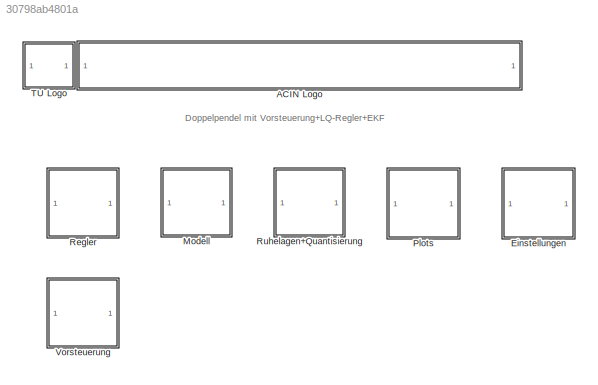
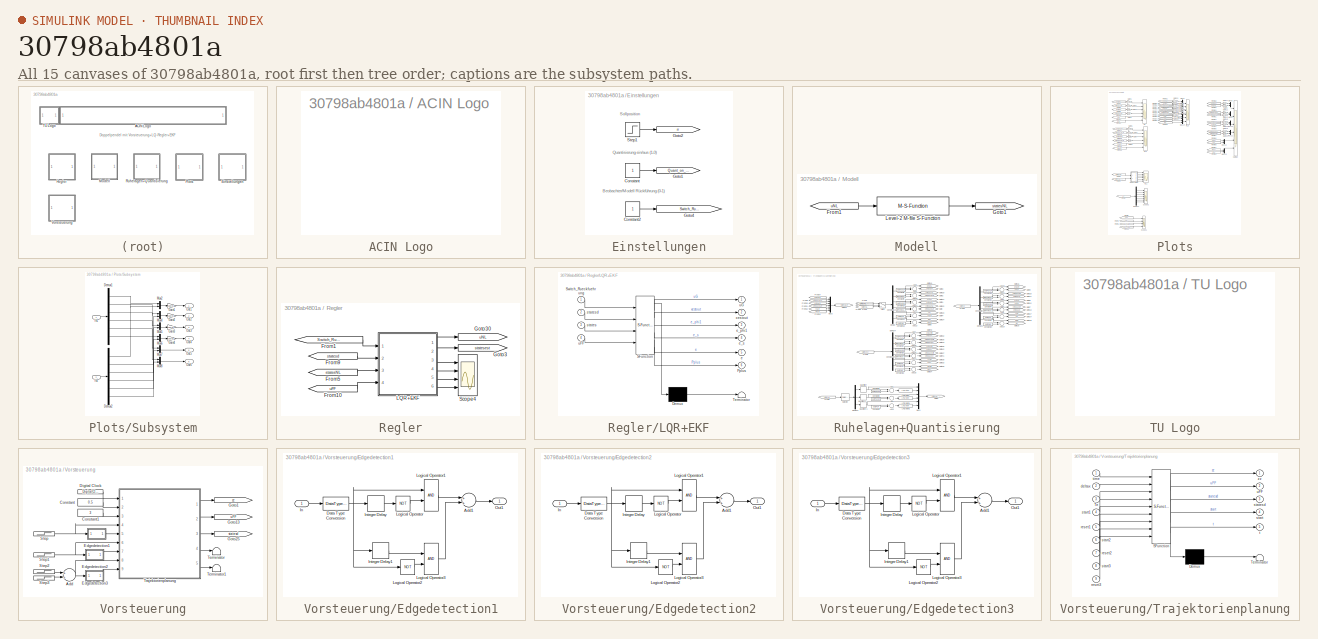
[diagram: thumbnail index - all 15 canvases of the model, root first then tree order]
MODEL slx_30798ab4801a
KIND model
CONFIG AbsTol = auto
CONFIG FixedStep = auto
CONFIG MaxStep = auto
CONFIG MinStep = auto
CONFIG RelTol = auto
CONFIG SampleTimeConstraint = Unconstrained
CONFIG Solver = ode45
CONFIG SolverMode = Auto
CONFIG SolverName = ode45
CONFIG StartTime = 0.0
CONFIG StopTime = 10
BLOCK [SubSystem] ACIN Logo
  Ports = []
  RequestExecContextInheritance = off
  UserDataPersistent = on
  Variant = off
BLOCK [SubSystem] Einstellungen
  Ports = []
  RequestExecContextInheritance = off
  Variant = off
BLOCK [Constant] Einstellungen/Constant
BLOCK [Constant] Einstellungen/Constant2
BLOCK [Goto] Einstellungen/Goto1
  GotoTag = Quant_on_off
  TagVisibility = global
BLOCK [Goto] Einstellungen/Goto2
  GotoTag = rr
  TagVisibility = global
BLOCK [Goto] Einstellungen/Goto4
  GotoTag = Switch_Rueckfuehrung
  TagVisibility = global
BLOCK [Step] Einstellungen/Step1
  After = 0.1
  SampleTime = parLQR.Ta
BLOCK [SubSystem] Modell
  Ports = []
  RequestExecContextInheritance = off
  Variant = off
BLOCK [From] Modell/From1
  CloseFcn = tagdialog Close
  GotoTag = uNL
  TagVisibility = global
BLOCK [Goto] Modell/Goto1
  GotoTag = statesNL
  TagVisibility = global
BLOCK [M-S-Function] Modell/Level-2 M-file S-Function
  FunctionName = Doppelpendel_NL_S_m
  Parameters = parDP.phi10,parDP.omega10,parDP.phi20,parDP.omega20,parDP.s0,parDP.w0,parDP.l1,parDP.l2,parDP.a1,parDP.a2,parDP.m1,parDP.m2,parDP.J1,parDP.J2,parDP.d1,parDP.d2
  Ports = [1, 1]
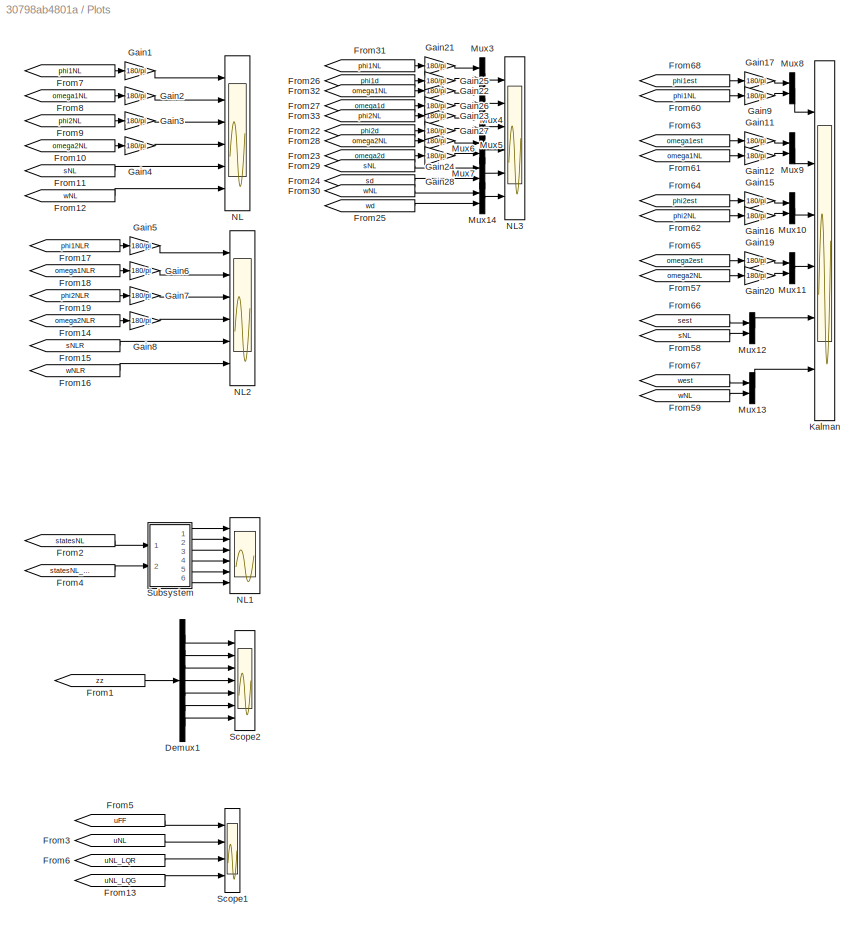
BLOCK [SubSystem] Plots
  Ports = []
  RequestExecContextInheritance = off
  Variant = off
BLOCK [Demux] Plots/Demux1
  DisplayOption = bar
  Outputs = 7
  Ports = [1, 7]
BLOCK [From] Plots/From1
  CloseFcn = tagdialog Close
  GotoTag = zz
  TagVisibility = global
BLOCK [From] Plots/From10
  CloseFcn = tagdialog Close
  GotoTag = omega2NL
  TagVisibility = global
BLOCK [From] Plots/From11
  CloseFcn = tagdialog Close
  GotoTag = sNL
  TagVisibility = global
BLOCK [From] Plots/From12
  CloseFcn = tagdialog Close
  GotoTag = wNL
  TagVisibility = global
BLOCK [From] Plots/From13
  CloseFcn = tagdialog Close
  GotoTag = uNL_LQG
BLOCK [From] Plots/From14
  CloseFcn = tagdialog Close
  GotoTag = omega2NLR
  TagVisibility = global
BLOCK [From] Plots/From15
  CloseFcn = tagdialog Close
  GotoTag = sNLR
  TagVisibility = global
BLOCK [From] Plots/From16
  CloseFcn = tagdialog Close
  GotoTag = wNLR
  TagVisibility = global
BLOCK [From] Plots/From17
  CloseFcn = tagdialog Close
  GotoTag = phi1NLR
  TagVisibility = global
BLOCK [From] Plots/From18
  CloseFcn = tagdialog Close
  GotoTag = omega1NLR
  TagVisibility = global
BLOCK [From] Plots/From19
  CloseFcn = tagdialog Close
  GotoTag = phi2NLR
  TagVisibility = global
BLOCK [From] Plots/From2
  CloseFcn = tagdialog Close
  GotoTag = statesNL
  TagVisibility = global
BLOCK [From] Plots/From22
  CloseFcn = tagdialog Close
  GotoTag = phi2d
  TagVisibility = global
BLOCK [From] Plots/From23
  CloseFcn = tagdialog Close
  GotoTag = omega2d
  TagVisibility = global
BLOCK [From] Plots/From24
  CloseFcn = tagdialog Close
  GotoTag = sd
  TagVisibility = global
BLOCK [From] Plots/From25
  CloseFcn = tagdialog Close
  GotoTag = wd
  TagVisibility = global
BLOCK [From] Plots/From26
  CloseFcn = tagdialog Close
  GotoTag = phi1d
  TagVisibility = global
BLOCK [From] Plots/From27
  CloseFcn = tagdialog Close
  GotoTag = omega1d
  TagVisibility = global
BLOCK [From] Plots/From28
  CloseFcn = tagdialog Close
  GotoTag = omega2NL
  TagVisibility = global
BLOCK [From] Plots/From29
  CloseFcn = tagdialog Close
  GotoTag = sNL
  TagVisibility = global
BLOCK [From] Plots/From3
  CloseFcn = tagdialog Close
  GotoTag = uNL
  TagVisibility = global
BLOCK [From] Plots/From30
  CloseFcn = tagdialog Close
  GotoTag = wNL
  TagVisibility = global
BLOCK [From] Plots/From31
  CloseFcn = tagdialog Close
  GotoTag = phi1NL
  TagVisibility = global
BLOCK [From] Plots/From32
  CloseFcn = tagdialog Close
  GotoTag = omega1NL
  TagVisibility = global
BLOCK [From] Plots/From33
  CloseFcn = tagdialog Close
  GotoTag = phi2NL
  TagVisibility = global
BLOCK [From] Plots/From4
  CloseFcn = tagdialog Close
  GotoTag = statesNL_quant
  TagVisibility = global
BLOCK [From] Plots/From5
  CloseFcn = tagdialog Close
  GotoTag = uFF
  TagVisibility = global
BLOCK [From] Plots/From57
  CloseFcn = tagdialog Close
  GotoTag = omega2NL
  TagVisibility = global
BLOCK [From] Plots/From58
  CloseFcn = tagdialog Close
  GotoTag = sNL
  TagVisibility = global
BLOCK [From] Plots/From59
  CloseFcn = tagdialog Close
  GotoTag = wNL
  TagVisibility = global
BLOCK [From] Plots/From6
  CloseFcn = tagdialog Close
  GotoTag = uNL_LQR
BLOCK [From] Plots/From60
  CloseFcn = tagdialog Close
  GotoTag = phi1NL
  TagVisibility = global
BLOCK [From] Plots/From61
  CloseFcn = tagdialog Close
  GotoTag = omega1NL
  TagVisibility = global
BLOCK [From] Plots/From62
  CloseFcn = tagdialog Close
  GotoTag = phi2NL
  TagVisibility = global
BLOCK [From] Plots/From63
  CloseFcn = tagdialog Close
  GotoTag = omega1est
  TagVisibility = global
BLOCK [From] Plots/From64
  CloseFcn = tagdialog Close
  GotoTag = phi2est
  TagVisibility = global
BLOCK [From] Plots/From65
  CloseFcn = tagdialog Close
  GotoTag = omega2est
  TagVisibility = global
BLOCK [From] Plots/From66
  CloseFcn = tagdialog Close
  GotoTag = sest
  TagVisibility = global
BLOCK [From] Plots/From67
  CloseFcn = tagdialog Close
  GotoTag = west
  TagVisibility = global
BLOCK [From] Plots/From68
  CloseFcn = tagdialog Close
  GotoTag = phi1est
  TagVisibility = global
BLOCK [From] Plots/From7
  CloseFcn = tagdialog Close
  GotoTag = phi1NL
  TagVisibility = global
BLOCK [From] Plots/From8
  CloseFcn = tagdialog Close
  GotoTag = omega1NL
  TagVisibility = global
BLOCK [From] Plots/From9
  CloseFcn = tagdialog Close
  GotoTag = phi2NL
  TagVisibility = global
BLOCK [Gain] Plots/Gain1
  Gain = 180/pi
  OutDataTypeStr = Inherit: Inherit via internal rule
  ParamDataTypeStr = Inherit: Inherit via internal rule
  SaturateOnIntegerOverflow = off
BLOCK [Gain] Plots/Gain11
  Gain = 180/pi
  OutDataTypeStr = Inherit: Inherit via internal rule
  ParamDataTypeStr = Inherit: Inherit via internal rule
  SaturateOnIntegerOverflow = off
BLOCK [Gain] Plots/Gain12
  Gain = 180/pi
  OutDataTypeStr = Inherit: Inherit via internal rule
  ParamDataTypeStr = Inherit: Inherit via internal rule
  SaturateOnIntegerOverflow = off
BLOCK [Gain] Plots/Gain15
  Gain = 180/pi
  OutDataTypeStr = Inherit: Inherit via internal rule
  ParamDataTypeStr = Inherit: Inherit via internal rule
  SaturateOnIntegerOverflow = off
BLOCK [Gain] Plots/Gain16
  Gain = 180/pi
  OutDataTypeStr = Inherit: Inherit via internal rule
  ParamDataTypeStr = Inherit: Inherit via internal rule
  SaturateOnIntegerOverflow = off
BLOCK [Gain] Plots/Gain17
  Gain = 180/pi
  OutDataTypeStr = Inherit: Inherit via internal rule
  ParamDataTypeStr = Inherit: Inherit via internal rule
  SaturateOnIntegerOverflow = off
BLOCK [Gain] Plots/Gain19
  Gain = 180/pi
  OutDataTypeStr = Inherit: Inherit via internal rule
  ParamDataTypeStr = Inherit: Inherit via internal rule
  SaturateOnIntegerOverflow = off
BLOCK [Gain] Plots/Gain2
  Gain = 180/pi
  OutDataTypeStr = Inherit: Inherit via internal rule
  ParamDataTypeStr = Inherit: Inherit via internal rule
  SaturateOnIntegerOverflow = off
BLOCK [Gain] Plots/Gain20
  Gain = 180/pi
  OutDataTypeStr = Inherit: Inherit via internal rule
  ParamDataTypeStr = Inherit: Inherit via internal rule
  SaturateOnIntegerOverflow = off
BLOCK [Gain] Plots/Gain21
  Gain = 180/pi
  OutDataTypeStr = Inherit: Inherit via internal rule
  ParamDataTypeStr = Inherit: Inherit via internal rule
  SaturateOnIntegerOverflow = off
BLOCK [Gain] Plots/Gain22
  Gain = 180/pi
  OutDataTypeStr = Inherit: Inherit via internal rule
  ParamDataTypeStr = Inherit: Inherit via internal rule
  SaturateOnIntegerOverflow = off
BLOCK [Gain] Plots/Gain23
  Gain = 180/pi
  OutDataTypeStr = Inherit: Inherit via internal rule
  ParamDataTypeStr = Inherit: Inherit via internal rule
  SaturateOnIntegerOverflow = off
BLOCK [Gain] Plots/Gain24
  Gain = 180/pi
  OutDataTypeStr = Inherit: Inherit via internal rule
  ParamDataTypeStr = Inherit: Inherit via internal rule
  SaturateOnIntegerOverflow = off
BLOCK [Gain] Plots/Gain25
  Gain = 180/pi
  OutDataTypeStr = Inherit: Inherit via internal rule
  ParamDataTypeStr = Inherit: Inherit via internal rule
  SaturateOnIntegerOverflow = off
BLOCK [Gain] Plots/Gain26
  Gain = 180/pi
  OutDataTypeStr = Inherit: Inherit via internal rule
  ParamDataTypeStr = Inherit: Inherit via internal rule
  SaturateOnIntegerOverflow = off
BLOCK [Gain] Plots/Gain27
  Gain = 180/pi
  OutDataTypeStr = Inherit: Inherit via internal rule
  ParamDataTypeStr = Inherit: Inherit via internal rule
  SaturateOnIntegerOverflow = off
BLOCK [Gain] Plots/Gain28
  Gain = 180/pi
  OutDataTypeStr = Inherit: Inherit via internal rule
  ParamDataTypeStr = Inherit: Inherit via internal rule
  SaturateOnIntegerOverflow = off
BLOCK [Gain] Plots/Gain3
  Gain = 180/pi
  OutDataTypeStr = Inherit: Inherit via internal rule
  ParamDataTypeStr = Inherit: Inherit via internal rule
  SaturateOnIntegerOverflow = off
BLOCK [Gain] Plots/Gain4
  Gain = 180/pi
  OutDataTypeStr = Inherit: Inherit via internal rule
  ParamDataTypeStr = Inherit: Inherit via internal rule
  SaturateOnIntegerOverflow = off
BLOCK [Gain] Plots/Gain5
  Gain = 180/pi
  OutDataTypeStr = Inherit: Inherit via internal rule
  ParamDataTypeStr = Inherit: Inherit via internal rule
  SaturateOnIntegerOverflow = off
BLOCK [Gain] Plots/Gain6
  Gain = 180/pi
  OutDataTypeStr = Inherit: Inherit via internal rule
  ParamDataTypeStr = Inherit: Inherit via internal rule
  SaturateOnIntegerOverflow = off
BLOCK [Gain] Plots/Gain7
  Gain = 180/pi
  OutDataTypeStr = Inherit: Inherit via internal rule
  ParamDataTypeStr = Inherit: Inherit via internal rule
  SaturateOnIntegerOverflow = off
BLOCK [Gain] Plots/Gain8
  Gain = 180/pi
  OutDataTypeStr = Inherit: Inherit via internal rule
  ParamDataTypeStr = Inherit: Inherit via internal rule
  SaturateOnIntegerOverflow = off
BLOCK [Gain] Plots/Gain9
  Gain = 180/pi
  OutDataTypeStr = Inherit: Inherit via internal rule
  ParamDataTypeStr = Inherit: Inherit via internal rule
  SaturateOnIntegerOverflow = off
BLOCK [Scope] Plots/Kalman
  DataFormat = StructureWithTime
  Decimation = 1
  Grid = on
  LimitDataPoints = off
  MaxDataPoints = 5000
  NumInputPorts = 6
  Ports = [6]
  SampleInput = off
  SampleTime = -1
  SaveName = ScopeData6
  SaveToWorkspace = off
  ShowLegends = off
  TickLabels = OneTimeTick
  TimeRange = 2
  YMax = 14.40031~48.23914~10.61279~25.10649~0.69266~1.03308
  YMin = -14.46604~-53.29287~-10.70068~-37.53468~-0.67404~-1.7722
  ZoomMode = on
BLOCK [Mux] Plots/Mux10
  DisplayOption = bar
  Inputs = 2
  Ports = [2, 1]
BLOCK [Mux] Plots/Mux11
  DisplayOption = bar
  Inputs = 2
  Ports = [2, 1]
BLOCK [Mux] Plots/Mux12
  DisplayOption = bar
  Inputs = 2
  Ports = [2, 1]
BLOCK [Mux] Plots/Mux13
  DisplayOption = bar
  Inputs = 2
  Ports = [2, 1]
BLOCK [Mux] Plots/Mux14
  DisplayOption = bar
  Inputs = 2
  Ports = [2, 1]
BLOCK [Mux] Plots/Mux3
  DisplayOption = bar
  Inputs = 2
  Ports = [2, 1]
BLOCK [Mux] Plots/Mux4
  DisplayOption = bar
  Inputs = 2
  Ports = [2, 1]
BLOCK [Mux] Plots/Mux5
  DisplayOption = bar
  Inputs = 2
  Ports = [2, 1]
BLOCK [Mux] Plots/Mux6
  DisplayOption = bar
  Inputs = 2
  Ports = [2, 1]
BLOCK [Mux] Plots/Mux7
  DisplayOption = bar
  Inputs = 2
  Ports = [2, 1]
BLOCK [Mux] Plots/Mux8
  DisplayOption = bar
  Inputs = 2
  Ports = [2, 1]
BLOCK [Mux] Plots/Mux9
  DisplayOption = bar
  Inputs = 2
  Ports = [2, 1]
BLOCK [Scope] Plots/NL
  DataFormat = StructureWithTime
  Decimation = 1
  Grid = on
  LimitDataPoints = off
  MaxDataPoints = 5000
  NumInputPorts = 6
  Ports = [6]
  SampleInput = off
  SampleTime = -1
  SaveName = ScopeData2
  SaveToWorkspace = off
  ShowLegends = off
  TickLabels = OneTimeTick
  TimeRange = auto
  YMax = 14.40308~222.23199~10.61279~25.11214~0.69278~1.0281
  YMin = -14.49097~-95.791~-10.70068~-37.58463~-0.67405~-1.77205
  ZoomMode = on
BLOCK [Scope] Plots/NL1
  DataFormat = StructureWithTime
  Decimation = 1
  Grid = on
  LimitDataPoints = off
  MaxDataPoints = 5000
  NumInputPorts = 6
  Ports = [6]
  SampleInput = off
  SampleTime = -1
  SaveName = ScopeData1
  SaveToWorkspace = off
  ShowLegends = off
  TickLabels = OneTimeTick
  TimeRange = auto
  YMax = 125~125~125~125~125~125
  YMin = -50~-50~-50~-50~-50~-50
  ZoomMode = on
BLOCK [Scope] Plots/NL2
  DataFormat = StructureWithTime
  Decimation = 1
  Grid = on
  LimitDataPoints = off
  MaxDataPoints = 5000
  NumInputPorts = 6
  Ports = [6]
  SampleInput = off
  SampleTime = -1
  SaveName = ScopeData5
  SaveToWorkspace = off
  ShowLegends = off
  TickLabels = OneTimeTick
  TimeRange = auto
  YMax = 2.5~2.5~2.5~2.5~2.5~2.5
  YMin = -3.5~-3.5~-3.5~-3.5~-3.5~-3.5
  ZoomMode = on
BLOCK [Scope] Plots/NL3
  DataFormat = StructureWithTime
  Decimation = 1
  Grid = on
  LimitDataPoints = off
  MaxDataPoints = 5000
  NumInputPorts = 6
  Ports = [6]
  SampleInput = off
  SampleTime = -1
  SaveName = ScopeData8
  SaveToWorkspace = off
  ShowLegends = off
  TickLabels = OneTimeTick
  TimeRange = 6
  YMax = 189~189~189~189~189~189
  YMin = 171~171~171~171~171~171
  ZoomMode = on
BLOCK [Scope] Plots/Scope1
  DataFormat = StructureWithTime
  Decimation = 1
  Grid = on
  LimitDataPoints = off
  MaxDataPoints = 5000
  NumInputPorts = 4
  Ports = [4]
  SampleInput = off
  SampleTime = -1
  SaveName = ScopeData4
  SaveToWorkspace = off
  ShowLegends = off
  TickLabels = OneTimeTick
  TimeRange = 6
  YMax = 0.4~0.4~0.4~0.4
  YMin = -0.4~-0.4~-0.4~-0.4
  ZoomMode = on
BLOCK [Scope] Plots/Scope2
  DataFormat = StructureWithTime
  Decimation = 1
  Grid = on
  LimitDataPoints = off
  MaxDataPoints = 5000
  NumInputPorts = 7
  Ports = [7]
  SampleInput = off
  SampleTime = -1
  SaveName = ScopeData9
  SaveToWorkspace = off
  ShowLegends = off
  TickLabels = OneTimeTick
  TimeRange = 6
  YMax = 0.0006~0.0006~0.0006~0.0006~0.0006~0.0006~0.0006
  YMin = 0~0~0~0~0~0~0
  ZoomMode = on
BLOCK [SubSystem] Plots/Subsystem
  Ports = [2, 6]
  RequestExecContextInheritance = off
  Variant = off
BLOCK [Demux] Plots/Subsystem/Demux1
  DisplayOption = bar
  Outputs = 6
  Ports = [1, 6]
BLOCK [Demux] Plots/Subsystem/Demux2
  DisplayOption = bar
  Outputs = 6
  Ports = [1, 6]
BLOCK [Gain] Plots/Subsystem/Gain1
  Gain = 180/pi
  OutDataTypeStr = Inherit: Inherit via internal rule
  ParamDataTypeStr = Inherit: Inherit via internal rule
  SaturateOnIntegerOverflow = off
BLOCK [Gain] Plots/Subsystem/Gain2
  Gain = 180/pi
  OutDataTypeStr = Inherit: Inherit via internal rule
  ParamDataTypeStr = Inherit: Inherit via internal rule
  SaturateOnIntegerOverflow = off
BLOCK [Gain] Plots/Subsystem/Gain3
  Gain = 180/pi
  OutDataTypeStr = Inherit: Inherit via internal rule
  ParamDataTypeStr = Inherit: Inherit via internal rule
  SaturateOnIntegerOverflow = off
BLOCK [Gain] Plots/Subsystem/Gain4
  Gain = 180/pi
  OutDataTypeStr = Inherit: Inherit via internal rule
  ParamDataTypeStr = Inherit: Inherit via internal rule
  SaturateOnIntegerOverflow = off
BLOCK [Inport] Plots/Subsystem/In1
  IconDisplay = Port number
BLOCK [Inport] Plots/Subsystem/In2
  IconDisplay = Port number
  Port = 2
BLOCK [Mux] Plots/Subsystem/Mux2
  DisplayOption = bar
  Inputs = 2
  Ports = [2, 1]
BLOCK [Mux] Plots/Subsystem/Mux4
  DisplayOption = bar
  Inputs = 2
  Ports = [2, 1]
BLOCK [Mux] Plots/Subsystem/Mux5
  DisplayOption = bar
  Inputs = 2
  Ports = [2, 1]
BLOCK [Mux] Plots/Subsystem/Mux6
  DisplayOption = bar
  Inputs = 2
  Ports = [2, 1]
BLOCK [Mux] Plots/Subsystem/Mux7
  DisplayOption = bar
  Inputs = 2
  Ports = [2, 1]
BLOCK [Mux] Plots/Subsystem/Mux8
  DisplayOption = bar
  Inputs = 2
  Ports = [2, 1]
BLOCK [Outport] Plots/Subsystem/Out1
  IconDisplay = Port number
BLOCK [Outport] Plots/Subsystem/Out2
  IconDisplay = Port number
  Port = 2
BLOCK [Outport] Plots/Subsystem/Out3
  IconDisplay = Port number
  Port = 3
BLOCK [Outport] Plots/Subsystem/Out4
  IconDisplay = Port number
  Port = 4
BLOCK [Outport] Plots/Subsystem/Out5
  IconDisplay = Port number
  Port = 5
BLOCK [Outport] Plots/Subsystem/Out6
  IconDisplay = Port number
  Port = 6
BLOCK [SubSystem] Regler
  Ports = []
  RequestExecContextInheritance = off
  Variant = off
BLOCK [From] Regler/From1
  CloseFcn = tagdialog Close
  GotoTag = Switch_Rueckfuehrung
  TagVisibility = global
BLOCK [From] Regler/From10
  CloseFcn = tagdialog Close
  GotoTag = uFF
  TagVisibility = global
BLOCK [From] Regler/From5
  CloseFcn = tagdialog Close
  GotoTag = statesNL
  TagVisibility = global
BLOCK [From] Regler/From9
  CloseFcn = tagdialog Close
  GotoTag = statesd
  TagVisibility = global
BLOCK [Goto] Regler/Goto3
  GotoTag = statesest
  TagVisibility = global
BLOCK [Goto] Regler/Goto30
  GotoTag = uNL
  TagVisibility = global
BLOCK [SubSystem] Regler/LQR+EKF
  ErrorFcn = Stateflow.Translate.translate
  PermitHierarchicalResolution = ParametersOnly
  Ports = [4, 6]
  RequestExecContextInheritance = off
  SFBlockType = MATLAB Function
  TreatAsAtomicUnit = on
  Variant = off
BLOCK [Demux] Regler/LQR+EKF/ Demux 
  Outputs = 1
  Ports = [1, 1]
BLOCK [S-Function] Regler/LQR+EKF/ SFunction 
  EnableBusSupport = off
  FunctionName = sf_sfun
  Parameters = parDP,parEKF,parLQR
  PortCounts = [4 7]
  Ports = [4, 7]
  SFunctionDeploymentMode = off
  Tag = Stateflow S-Function Doppelpendel_EKF_2015a 1
BLOCK [Terminator] Regler/LQR+EKF/ Terminator 
BLOCK [Outport] Regler/LQR+EKF/Pplus
  IconDisplay = Port number
  Port = 6
BLOCK [Inport] Regler/LQR+EKF/Switch_Rueckfuehrung
  IconDisplay = Port number
BLOCK [Outport] Regler/LQR+EKF/e
  IconDisplay = Port number
  Port = 5
BLOCK [Outport] Regler/LQR+EKF/e_phi1
  IconDisplay = Port number
  Port = 3
BLOCK [Outport] Regler/LQR+EKF/e_s
  IconDisplay = Port number
  Port = 4
BLOCK [Inport] Regler/LQR+EKF/states
  IconDisplay = Port number
  Port = 3
BLOCK [Inport] Regler/LQR+EKF/statesd
  IconDisplay = Port number
  Port = 2
BLOCK [Inport] Regler/LQR+EKF/uFF
  IconDisplay = Port number
  Port = 4
BLOCK [Outport] Regler/LQR+EKF/uG
  IconDisplay = Port number
BLOCK [Outport] Regler/LQR+EKF/xestout
  IconDisplay = Port number
  Port = 2
BLOCK [Scope] Regler/Scope4
  DataFormat = StructureWithTime
  Decimation = 1
  Grid = on
  LimitDataPoints = off
  MaxDataPoints = 5000
  NumInputPorts = 4
  Ports = [4]
  SampleInput = off
  SampleTime = -1
  SaveName = ScopeData10
  SaveToWorkspace = off
  ShowLegends = off
  TickLabels = OneTimeTick
  TimeRange = 20
  YMax = 1854119521198518900000000000000000000000000000000000000000000000000000000000000000000000000000000000000000000000000000000000000000000.00000~0.0031~1.00000~10451816195112625000000000000000000000000000000000000000000000000000000000000000000000000000000000000000000000000000000000000000000000000000000000000000000000000000000000000000000000000000000000000000000000000000000000000000000000000000000000000...<+65ch>
  YMin = -16687075690786673000000000000000000000000000000000000000000000000000000000000000000000000000000000000000000000000000000000000000000000.00000~-0.0279~-1.00000~-226862199961136910000000000000000000000000000000000000000000000000000000000000000000000000000000000000000000000000000000000000000000000000000000000000000000000000000000000000000000000000000000000000000000000000000000000000000000000000000000...<+70ch>
  ZoomMode = on
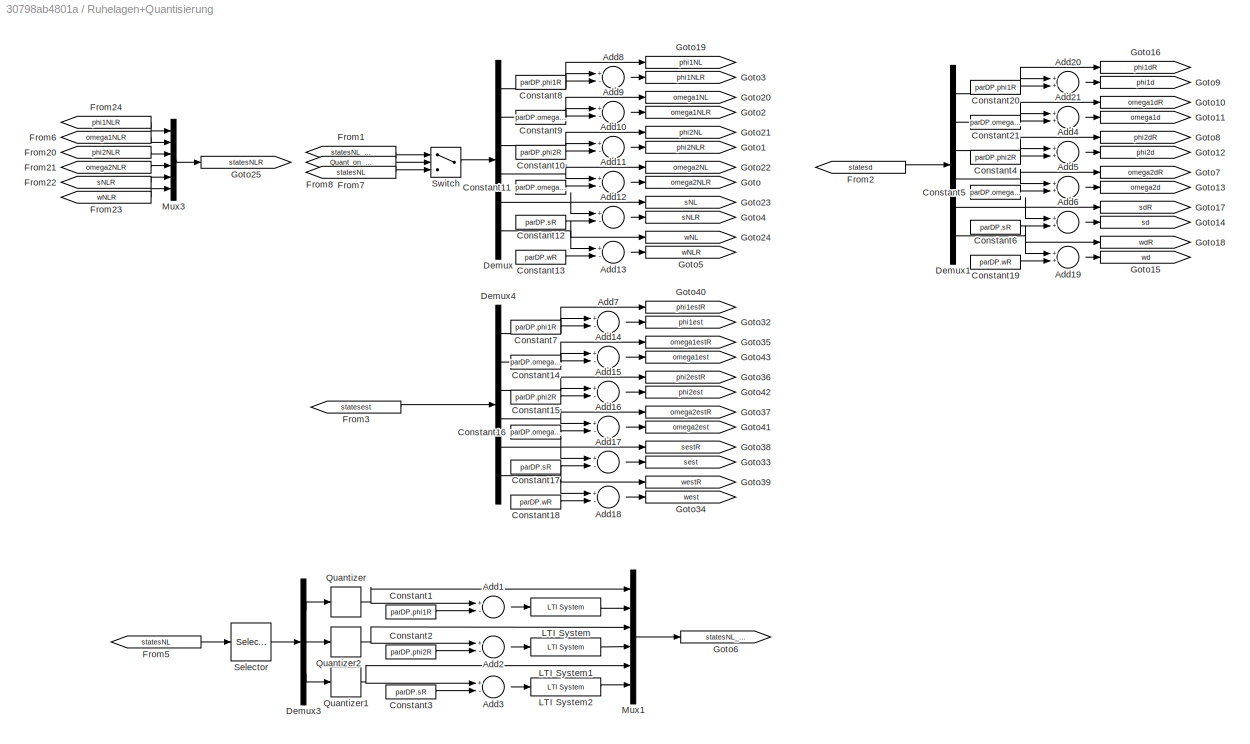
BLOCK [SubSystem] Ruhelagen+Quantisierung
  Ports = []
  RequestExecContextInheritance = off
  Variant = off
BLOCK [Sum] Ruhelagen+Quantisierung/Add1
  InputSameDT = off
  Inputs = +-
  OutDataTypeStr = Inherit: Inherit via internal rule
  Ports = [2, 1]
  SaturateOnIntegerOverflow = off
BLOCK [Sum] Ruhelagen+Quantisierung/Add10
  InputSameDT = off
  Inputs = +-
  OutDataTypeStr = Inherit: Inherit via internal rule
  Ports = [2, 1]
  SaturateOnIntegerOverflow = off
BLOCK [Sum] Ruhelagen+Quantisierung/Add11
  InputSameDT = off
  Inputs = +-
  OutDataTypeStr = Inherit: Inherit via internal rule
  Ports = [2, 1]
  SaturateOnIntegerOverflow = off
BLOCK [Sum] Ruhelagen+Quantisierung/Add12
  InputSameDT = off
  Inputs = +-
  OutDataTypeStr = Inherit: Inherit via internal rule
  Ports = [2, 1]
  SaturateOnIntegerOverflow = off
BLOCK [Sum] Ruhelagen+Quantisierung/Add13
  InputSameDT = off
  Inputs = +-
  OutDataTypeStr = Inherit: Inherit via internal rule
  Ports = [2, 1]
  SaturateOnIntegerOverflow = off
BLOCK [Sum] Ruhelagen+Quantisierung/Add14
  InputSameDT = off
  Inputs = +-
  OutDataTypeStr = Inherit: Inherit via internal rule
  Ports = [2, 1]
  SaturateOnIntegerOverflow = off
BLOCK [Sum] Ruhelagen+Quantisierung/Add15
  InputSameDT = off
  Inputs = +-
  OutDataTypeStr = Inherit: Inherit via internal rule
  Ports = [2, 1]
  SaturateOnIntegerOverflow = off
BLOCK [Sum] Ruhelagen+Quantisierung/Add16
  InputSameDT = off
  Inputs = +-
  OutDataTypeStr = Inherit: Inherit via internal rule
  Ports = [2, 1]
  SaturateOnIntegerOverflow = off
BLOCK [Sum] Ruhelagen+Quantisierung/Add17
  InputSameDT = off
  Inputs = +-
  OutDataTypeStr = Inherit: Inherit via internal rule
  Ports = [2, 1]
  SaturateOnIntegerOverflow = off
BLOCK [Sum] Ruhelagen+Quantisierung/Add18
  InputSameDT = off
  Inputs = +-
  OutDataTypeStr = Inherit: Inherit via internal rule
  Ports = [2, 1]
  SaturateOnIntegerOverflow = off
BLOCK [Sum] Ruhelagen+Quantisierung/Add19
  InputSameDT = off
  OutDataTypeStr = Inherit: Inherit via internal rule
  Ports = [2, 1]
  SaturateOnIntegerOverflow = off
BLOCK [Sum] Ruhelagen+Quantisierung/Add2
  InputSameDT = off
  Inputs = +-
  OutDataTypeStr = Inherit: Inherit via internal rule
  Ports = [2, 1]
  SaturateOnIntegerOverflow = off
BLOCK [Sum] Ruhelagen+Quantisierung/Add20
  InputSameDT = off
  OutDataTypeStr = Inherit: Inherit via internal rule
  Ports = [2, 1]
  SaturateOnIntegerOverflow = off
BLOCK [Sum] Ruhelagen+Quantisierung/Add21
  InputSameDT = off
  OutDataTypeStr = Inherit: Inherit via internal rule
  Ports = [2, 1]
  SaturateOnIntegerOverflow = off
BLOCK [Sum] Ruhelagen+Quantisierung/Add3
  InputSameDT = off
  Inputs = +-
  OutDataTypeStr = Inherit: Inherit via internal rule
  Ports = [2, 1]
  SaturateOnIntegerOverflow = off
BLOCK [Sum] Ruhelagen+Quantisierung/Add4
  InputSameDT = off
  OutDataTypeStr = Inherit: Inherit via internal rule
  Ports = [2, 1]
  SaturateOnIntegerOverflow = off
BLOCK [Sum] Ruhelagen+Quantisierung/Add5
  InputSameDT = off
  OutDataTypeStr = Inherit: Inherit via internal rule
  Ports = [2, 1]
  SaturateOnIntegerOverflow = off
BLOCK [Sum] Ruhelagen+Quantisierung/Add6
  InputSameDT = off
  OutDataTypeStr = Inherit: Inherit via internal rule
  Ports = [2, 1]
  SaturateOnIntegerOverflow = off
BLOCK [Sum] Ruhelagen+Quantisierung/Add7
  InputSameDT = off
  Inputs = +-
  OutDataTypeStr = Inherit: Inherit via internal rule
  Ports = [2, 1]
  SaturateOnIntegerOverflow = off
BLOCK [Sum] Ruhelagen+Quantisierung/Add8
  InputSameDT = off
  Inputs = +-
  OutDataTypeStr = Inherit: Inherit via internal rule
  Ports = [2, 1]
  SaturateOnIntegerOverflow = off
BLOCK [Sum] Ruhelagen+Quantisierung/Add9
  InputSameDT = off
  Inputs = +-
  OutDataTypeStr = Inherit: Inherit via internal rule
  Ports = [2, 1]
  SaturateOnIntegerOverflow = off
BLOCK [Constant] Ruhelagen+Quantisierung/Constant1
  Value = parDP.phi1R
BLOCK [Constant] Ruhelagen+Quantisierung/Constant10
  Value = parDP.phi2R
BLOCK [Constant] Ruhelagen+Quantisierung/Constant11
  Value = parDP.omega2R
BLOCK [Constant] Ruhelagen+Quantisierung/Constant12
  Value = parDP.sR
BLOCK [Constant] Ruhelagen+Quantisierung/Constant13
  Value = parDP.wR
BLOCK [Constant] Ruhelagen+Quantisierung/Constant14
  Value = parDP.omega1R
BLOCK [Constant] Ruhelagen+Quantisierung/Constant15
  Value = parDP.phi2R
BLOCK [Constant] Ruhelagen+Quantisierung/Constant16
  Value = parDP.omega2R
BLOCK [Constant] Ruhelagen+Quantisierung/Constant17
  Value = parDP.sR
BLOCK [Constant] Ruhelagen+Quantisierung/Constant18
  Value = parDP.wR
BLOCK [Constant] Ruhelagen+Quantisierung/Constant19
  Value = parDP.wR
BLOCK [Constant] Ruhelagen+Quantisierung/Constant2
  Value = parDP.phi2R
BLOCK [Constant] Ruhelagen+Quantisierung/Constant20
  Value = parDP.phi1R
BLOCK [Constant] Ruhelagen+Quantisierung/Constant21
  Value = parDP.omega1R
BLOCK [Constant] Ruhelagen+Quantisierung/Constant3
  Value = parDP.sR
BLOCK [Constant] Ruhelagen+Quantisierung/Constant4
  Value = parDP.phi2R
BLOCK [Constant] Ruhelagen+Quantisierung/Constant5
  Value = parDP.omega2R
BLOCK [Constant] Ruhelagen+Quantisierung/Constant6
  Value = parDP.sR
BLOCK [Constant] Ruhelagen+Quantisierung/Constant7
  Value = parDP.phi1R
BLOCK [Constant] Ruhelagen+Quantisierung/Constant8
  Value = parDP.phi1R
BLOCK [Constant] Ruhelagen+Quantisierung/Constant9
  Value = parDP.omega1R
BLOCK [Demux] Ruhelagen+Quantisierung/Demux
  DisplayOption = bar
  Outputs = 6
  Ports = [1, 6]
BLOCK [Demux] Ruhelagen+Quantisierung/Demux1
  DisplayOption = bar
  Outputs = 6
  Ports = [1, 6]
BLOCK [Demux] Ruhelagen+Quantisierung/Demux3
  DisplayOption = bar
  Outputs = 3
  Ports = [1, 3]
BLOCK [Demux] Ruhelagen+Quantisierung/Demux4
  DisplayOption = bar
  Outputs = 6
  Ports = [1, 6]
BLOCK [From] Ruhelagen+Quantisierung/From1
  CloseFcn = tagdialog Close
  GotoTag = statesNL_quant
  TagVisibility = global
BLOCK [From] Ruhelagen+Quantisierung/From2
  CloseFcn = tagdialog Close
  GotoTag = statesd
  TagVisibility = global
BLOCK [From] Ruhelagen+Quantisierung/From20
  CloseFcn = tagdialog Close
  GotoTag = phi2NLR
  TagVisibility = global
BLOCK [From] Ruhelagen+Quantisierung/From21
  CloseFcn = tagdialog Close
  GotoTag = omega2NLR
  TagVisibility = global
BLOCK [From] Ruhelagen+Quantisierung/From22
  CloseFcn = tagdialog Close
  GotoTag = sNLR
  TagVisibility = global
BLOCK [From] Ruhelagen+Quantisierung/From23
  CloseFcn = tagdialog Close
  GotoTag = wNLR
  TagVisibility = global
BLOCK [From] Ruhelagen+Quantisierung/From24
  CloseFcn = tagdialog Close
  GotoTag = phi1NLR
  TagVisibility = global
BLOCK [From] Ruhelagen+Quantisierung/From3
  CloseFcn = tagdialog Close
  GotoTag = statesest
  TagVisibility = global
BLOCK [From] Ruhelagen+Quantisierung/From5
  CloseFcn = tagdialog Close
  GotoTag = statesNL
  TagVisibility = global
BLOCK [From] Ruhelagen+Quantisierung/From6
  CloseFcn = tagdialog Close
  GotoTag = omega1NLR
  TagVisibility = global
BLOCK [From] Ruhelagen+Quantisierung/From7
  CloseFcn = tagdialog Close
  GotoTag = Quant_on_off
  TagVisibility = global
BLOCK [From] Ruhelagen+Quantisierung/From8
  CloseFcn = tagdialog Close
  GotoTag = statesNL
  TagVisibility = global
BLOCK [Goto] Ruhelagen+Quantisierung/Goto
  GotoTag = omega2NLR
  TagVisibility = global
BLOCK [Goto] Ruhelagen+Quantisierung/Goto1
  GotoTag = phi2NLR
  TagVisibility = global
BLOCK [Goto] Ruhelagen+Quantisierung/Goto10
  GotoTag = omega1dR
  TagVisibility = global
BLOCK [Goto] Ruhelagen+Quantisierung/Goto11
  GotoTag = omega1d
  TagVisibility = global
BLOCK [Goto] Ruhelagen+Quantisierung/Goto12
  GotoTag = phi2d
  TagVisibility = global
BLOCK [Goto] Ruhelagen+Quantisierung/Goto13
  GotoTag = omega2d
  TagVisibility = global
BLOCK [Goto] Ruhelagen+Quantisierung/Goto14
  GotoTag = sd
  TagVisibility = global
BLOCK [Goto] Ruhelagen+Quantisierung/Goto15
  GotoTag = wd
  TagVisibility = global
BLOCK [Goto] Ruhelagen+Quantisierung/Goto16
  GotoTag = phi1dR
  TagVisibility = global
BLOCK [Goto] Ruhelagen+Quantisierung/Goto17
  GotoTag = sdR
  TagVisibility = global
BLOCK [Goto] Ruhelagen+Quantisierung/Goto18
  GotoTag = wdR
  TagVisibility = global
BLOCK [Goto] Ruhelagen+Quantisierung/Goto19
  GotoTag = phi1NL
  TagVisibility = global
BLOCK [Goto] Ruhelagen+Quantisierung/Goto2
  GotoTag = omega1NLR
  TagVisibility = global
BLOCK [Goto] Ruhelagen+Quantisierung/Goto20
  GotoTag = omega1NL
  TagVisibility = global
BLOCK [Goto] Ruhelagen+Quantisierung/Goto21
  GotoTag = phi2NL
  TagVisibility = global
BLOCK [Goto] Ruhelagen+Quantisierung/Goto22
  GotoTag = omega2NL
  TagVisibility = global
BLOCK [Goto] Ruhelagen+Quantisierung/Goto23
  GotoTag = sNL
  TagVisibility = global
BLOCK [Goto] Ruhelagen+Quantisierung/Goto24
  GotoTag = wNL
  TagVisibility = global
BLOCK [Goto] Ruhelagen+Quantisierung/Goto25
  GotoTag = statesNLR
  TagVisibility = global
BLOCK [Goto] Ruhelagen+Quantisierung/Goto3
  GotoTag = phi1NLR
  TagVisibility = global
BLOCK [Goto] Ruhelagen+Quantisierung/Goto32
  GotoTag = phi1est
  TagVisibility = global
BLOCK [Goto] Ruhelagen+Quantisierung/Goto33
  GotoTag = sest
  TagVisibility = global
BLOCK [Goto] Ruhelagen+Quantisierung/Goto34
  GotoTag = west
  TagVisibility = global
BLOCK [Goto] Ruhelagen+Quantisierung/Goto35
  GotoTag = omega1estR
  TagVisibility = global
BLOCK [Goto] Ruhelagen+Quantisierung/Goto36
  GotoTag = phi2estR
  TagVisibility = global
BLOCK [Goto] Ruhelagen+Quantisierung/Goto37
  GotoTag = omega2estR
  TagVisibility = global
BLOCK [Goto] Ruhelagen+Quantisierung/Goto38
  GotoTag = sestR
  TagVisibility = global
BLOCK [Goto] Ruhelagen+Quantisierung/Goto39
  GotoTag = westR
  TagVisibility = global
BLOCK [Goto] Ruhelagen+Quantisierung/Goto4
  GotoTag = sNLR
  TagVisibility = global
BLOCK [Goto] Ruhelagen+Quantisierung/Goto40
  GotoTag = phi1estR
  TagVisibility = global
BLOCK [Goto] Ruhelagen+Quantisierung/Goto41
  GotoTag = omega2est
  TagVisibility = global
BLOCK [Goto] Ruhelagen+Quantisierung/Goto42
  GotoTag = phi2est
  TagVisibility = global
BLOCK [Goto] Ruhelagen+Quantisierung/Goto43
  GotoTag = omega1est
  TagVisibility = global
BLOCK [Goto] Ruhelagen+Quantisierung/Goto5
  GotoTag = wNLR
  TagVisibility = global
BLOCK [Goto] Ruhelagen+Quantisierung/Goto6
  GotoTag = statesNL_quant
  TagVisibility = global
BLOCK [Goto] Ruhelagen+Quantisierung/Goto7
  GotoTag = omega2dR
  TagVisibility = global
BLOCK [Goto] Ruhelagen+Quantisierung/Goto8
  GotoTag = phi2dR
  TagVisibility = global
BLOCK [Goto] Ruhelagen+Quantisierung/Goto9
  GotoTag = phi1d
  TagVisibility = global
BLOCK [Reference] Ruhelagen+Quantisierung/LTI System  REF=cstblocks/LTI System
  IC = []
  Ports = [1, 1]
  SourceBlock = cstblocks/LTI System
  SourceType = LTI Block
  sys = Fd_diff
BLOCK [Reference] Ruhelagen+Quantisierung/LTI System1  REF=cstblocks/LTI System
  IC = []
  Ports = [1, 1]
  SourceBlock = cstblocks/LTI System
  SourceType = LTI Block
  sys = Fd_diff
BLOCK [Reference] Ruhelagen+Quantisierung/LTI System2  REF=cstblocks/LTI System
  IC = []
  Ports = [1, 1]
  SourceBlock = cstblocks/LTI System
  SourceType = LTI Block
  sys = Fd_diff
BLOCK [Mux] Ruhelagen+Quantisierung/Mux1
  DisplayOption = bar
  Inputs = 6
  Ports = [6, 1]
BLOCK [Mux] Ruhelagen+Quantisierung/Mux3
  DisplayOption = bar
  Inputs = 6
  Ports = [6, 1]
BLOCK [Quantizer] Ruhelagen+Quantisierung/Quantizer
  QuantizationInterval = Phiquantisierung
  SampleTime = parLQR.Ta
BLOCK [Quantizer] Ruhelagen+Quantisierung/Quantizer1
  QuantizationInterval = Wegquantisierung
  SampleTime = parLQR.Ta
BLOCK [Quantizer] Ruhelagen+Quantisierung/Quantizer2
  QuantizationInterval = Phiquantisierung
  SampleTime = parLQR.Ta
BLOCK [Selector] Ruhelagen+Quantisierung/Selector
  IndexOptions = Index vector (dialog)
  Indices = [1 3 5]
  InputPortWidth = 6
  OutputSizes = 1
  Ports = [1, 1]
BLOCK [Switch] Ruhelagen+Quantisierung/Switch
  InputSameDT = off
  SaturateOnIntegerOverflow = off
  Threshold = 0.5
BLOCK [SubSystem] TU Logo
  Ports = []
  RequestExecContextInheritance = off
  UserDataPersistent = on
  Variant = off
BLOCK [SubSystem] Vorsteuerung
  Ports = []
  RequestExecContextInheritance = off
  Variant = off
BLOCK [Sum] Vorsteuerung/Add
  InputSameDT = off
  OutDataTypeStr = Inherit: Inherit via internal rule
  Ports = [2, 1]
  SaturateOnIntegerOverflow = off
BLOCK [Constant] Vorsteuerung/Constant
  Value = 0.5
BLOCK [Constant] Vorsteuerung/Constant1
  Value = 3
BLOCK [DigitalClock] Vorsteuerung/Digital Clock
  SampleTime = parLQR.Ta
BLOCK [SubSystem] Vorsteuerung/Edgedetection1
  Ports = [1, 1]
  RequestExecContextInheritance = off
  Variant = off
BLOCK [Sum] Vorsteuerung/Edgedetection1/Add1
  InputSameDT = off
  OutDataTypeStr = Inherit: Inherit via internal rule
  Ports = [2, 1]
  SaturateOnIntegerOverflow = off
BLOCK [DataTypeConversion] Vorsteuerung/Edgedetection1/Data Type Conversion
  OutDataTypeStr = boolean
BLOCK [Inport] Vorsteuerung/Edgedetection1/In
  IconDisplay = Port number
BLOCK [Delay] Vorsteuerung/Edgedetection1/Integer Delay
  DelayLength = 1
  InputPortMap = u0
  InputProcessing = Inherited
  Ports = [1, 1]
  SampleTime = parLQR.Ta
BLOCK [Delay] Vorsteuerung/Edgedetection1/Integer Delay1
  DelayLength = 1
  InputPortMap = u0
  InputProcessing = Inherited
  Ports = [1, 1]
  SampleTime = parLQR.Ta
BLOCK [Logic] Vorsteuerung/Edgedetection1/Logical Operator
  Inputs = 1
  Operator = NOT
  Ports = [1, 1]
BLOCK [Logic] Vorsteuerung/Edgedetection1/Logical Operator1
  Ports = [2, 1]
BLOCK [Logic] Vorsteuerung/Edgedetection1/Logical Operator2
  Inputs = 1
  Operator = NOT
  Ports = [1, 1]
BLOCK [Logic] Vorsteuerung/Edgedetection1/Logical Operator3
  Ports = [2, 1]
BLOCK [Outport] Vorsteuerung/Edgedetection1/Out1
  IconDisplay = Port number
BLOCK [SubSystem] Vorsteuerung/Edgedetection2
  Ports = [1, 1]
  RequestExecContextInheritance = off
  Variant = off
BLOCK [Sum] Vorsteuerung/Edgedetection2/Add1
  InputSameDT = off
  OutDataTypeStr = Inherit: Inherit via internal rule
  Ports = [2, 1]
  SaturateOnIntegerOverflow = off
BLOCK [DataTypeConversion] Vorsteuerung/Edgedetection2/Data Type Conversion
  OutDataTypeStr = boolean
BLOCK [Inport] Vorsteuerung/Edgedetection2/In
  IconDisplay = Port number
BLOCK [Delay] Vorsteuerung/Edgedetection2/Integer Delay
  DelayLength = 1
  InputPortMap = u0
  InputProcessing = Inherited
  Ports = [1, 1]
  SampleTime = parLQR.Ta
BLOCK [Delay] Vorsteuerung/Edgedetection2/Integer Delay1
  DelayLength = 1
  InputPortMap = u0
  InputProcessing = Inherited
  Ports = [1, 1]
  SampleTime = parLQR.Ta
BLOCK [Logic] Vorsteuerung/Edgedetection2/Logical Operator
  Inputs = 1
  Operator = NOT
  Ports = [1, 1]
BLOCK [Logic] Vorsteuerung/Edgedetection2/Logical Operator1
  Ports = [2, 1]
BLOCK [Logic] Vorsteuerung/Edgedetection2/Logical Operator2
  Inputs = 1
  Operator = NOT
  Ports = [1, 1]
BLOCK [Logic] Vorsteuerung/Edgedetection2/Logical Operator3
  Ports = [2, 1]
BLOCK [Outport] Vorsteuerung/Edgedetection2/Out1
  IconDisplay = Port number
BLOCK [SubSystem] Vorsteuerung/Edgedetection3
  Ports = [1, 1]
  RequestExecContextInheritance = off
  Variant = off
BLOCK [Sum] Vorsteuerung/Edgedetection3/Add1
  InputSameDT = off
  OutDataTypeStr = Inherit: Inherit via internal rule
  Ports = [2, 1]
  SaturateOnIntegerOverflow = off
BLOCK [DataTypeConversion] Vorsteuerung/Edgedetection3/Data Type Conversion
  OutDataTypeStr = boolean
BLOCK [Inport] Vorsteuerung/Edgedetection3/In
  IconDisplay = Port number
BLOCK [Delay] Vorsteuerung/Edgedetection3/Integer Delay
  DelayLength = 1
  InputPortMap = u0
  InputProcessing = Inherited
  Ports = [1, 1]
  SampleTime = parLQR.Ta
BLOCK [Delay] Vorsteuerung/Edgedetection3/Integer Delay1
  DelayLength = 1
  InputPortMap = u0
  InputProcessing = Inherited
  Ports = [1, 1]
  SampleTime = parLQR.Ta
BLOCK [Logic] Vorsteuerung/Edgedetection3/Logical Operator
  Inputs = 1
  Operator = NOT
  Ports = [1, 1]
BLOCK [Logic] Vorsteuerung/Edgedetection3/Logical Operator1
  Ports = [2, 1]
BLOCK [Logic] Vorsteuerung/Edgedetection3/Logical Operator2
  Inputs = 1
  Operator = NOT
  Ports = [1, 1]
BLOCK [Logic] Vorsteuerung/Edgedetection3/Logical Operator3
  Ports = [2, 1]
BLOCK [Outport] Vorsteuerung/Edgedetection3/Out1
  IconDisplay = Port number
BLOCK [Goto] Vorsteuerung/Goto1
  GotoTag = zz
  TagVisibility = global
BLOCK [Goto] Vorsteuerung/Goto13
  GotoTag = uFF
  TagVisibility = global
BLOCK [Goto] Vorsteuerung/Goto25
  GotoTag = statesd
  TagVisibility = global
BLOCK [Step] Vorsteuerung/Step
  SampleTime = 0
  Time = 2
BLOCK [Step] Vorsteuerung/Step1
  SampleTime = 0
  Time = 6
BLOCK [Step] Vorsteuerung/Step2
  After = -1
  SampleTime = 0
  Time = 14
BLOCK [Step] Vorsteuerung/Step3
  SampleTime = 0
  Time = 10
BLOCK [Terminator] Vorsteuerung/Terminator
BLOCK [Terminator] Vorsteuerung/Terminator1
BLOCK [SubSystem] Vorsteuerung/Trajektorienplanung
  ErrorFcn = Stateflow.Translate.translate
  PermitHierarchicalResolution = ParametersOnly
  Ports = [9, 5]
  RequestExecContextInheritance = off
  SFBlockType = MATLAB Function
  TreatAsAtomicUnit = on
  Variant = off
BLOCK [Demux] Vorsteuerung/Trajektorienplanung/ Demux 
  Outputs = 1
  Ports = [1, 1]
BLOCK [S-Function] Vorsteuerung/Trajektorienplanung/ SFunction 
  EnableBusSupport = off
  FunctionName = sf_sfun
  Parameters = parFF
  PortCounts = [9 6]
  Ports = [9, 6]
  SFunctionDeploymentMode = off
  Tag = Stateflow S-Function Doppelpendel_EKF_2015a 6
BLOCK [Terminator] Vorsteuerung/Trajektorienplanung/ Terminator 
BLOCK [Inport] Vorsteuerung/Trajektorienplanung/Te
  IconDisplay = Port number
  Port = 3
BLOCK [Inport] Vorsteuerung/Trajektorienplanung/deltax
  IconDisplay = Port number
  Port = 2
BLOCK [Inport] Vorsteuerung/Trajektorienplanung/reset1
  IconDisplay = Port number
  Port = 5
BLOCK [Inport] Vorsteuerung/Trajektorienplanung/reset2
  IconDisplay = Port number
  Port = 7
BLOCK [Inport] Vorsteuerung/Trajektorienplanung/reset3
  IconDisplay = Port number
  Port = 9
BLOCK [Outport] Vorsteuerung/Trajektorienplanung/start
  IconDisplay = Port number
  Port = 4
BLOCK [Inport] Vorsteuerung/Trajektorienplanung/start1
  IconDisplay = Port number
  Port = 4
BLOCK [Inport] Vorsteuerung/Trajektorienplanung/start2
  IconDisplay = Port number
  Port = 6
BLOCK [Inport] Vorsteuerung/Trajektorienplanung/start3
  IconDisplay = Port number
  Port = 8
BLOCK [Outport] Vorsteuerung/Trajektorienplanung/statesd
  IconDisplay = Port number
  Port = 3
BLOCK [Outport] Vorsteuerung/Trajektorienplanung/t
  IconDisplay = Port number
  Port = 5
BLOCK [Inport] Vorsteuerung/Trajektorienplanung/time
  IconDisplay = Port number
BLOCK [Outport] Vorsteuerung/Trajektorienplanung/uFF
  IconDisplay = Port number
  Port = 2
BLOCK [Outport] Vorsteuerung/Trajektorienplanung/zz
  IconDisplay = Port number
ANNOTATION (root): Doppelpendel mit Vorsteuerung+LQ-Regler+EKF
ANNOTATION Einstellungen: Beobachter/Modell Rückführung (0-1)
ANNOTATION Einstellungen: Quantisierung ein/aus (1-0)
ANNOTATION Einstellungen: Sollposition
LINE Einstellungen/Constant2:1 -> Einstellungen/Goto4:1
LINE Einstellungen/Constant:1 -> Einstellungen/Goto1:1
LINE Einstellungen/Step1:1 -> Einstellungen/Goto2:1
LINE Modell/From1:1 -> Modell/Level-2 M-file S-Function:1
LINE Modell/Level-2 M-file S-Function:1 -> Modell/Goto1:1
LINE Plots/Demux1:1 -> Plots/Scope2:1
LINE Plots/Demux1:2 -> Plots/Scope2:2
LINE Plots/Demux1:3 -> Plots/Scope2:3
LINE Plots/Demux1:4 -> Plots/Scope2:4
LINE Plots/Demux1:5 -> Plots/Scope2:5
LINE Plots/Demux1:6 -> Plots/Scope2:6
LINE Plots/Demux1:7 -> Plots/Scope2:7
LINE Plots/From10:1 -> Plots/Gain4:1
LINE Plots/From11:1 -> Plots/NL:5
LINE Plots/From12:1 -> Plots/NL:6
LINE Plots/From13:1 -> Plots/Scope1:4
LINE Plots/From14:1 -> Plots/Gain8:1
LINE Plots/From15:1 -> Plots/NL2:5
LINE Plots/From16:1 -> Plots/NL2:6
LINE Plots/From17:1 -> Plots/Gain5:1
LINE Plots/From18:1 -> Plots/Gain6:1
LINE Plots/From19:1 -> Plots/Gain7:1
LINE Plots/From1:1 -> Plots/Demux1:1
LINE Plots/From22:1 -> Plots/Gain27:1
LINE Plots/From23:1 -> Plots/Gain28:1
LINE Plots/From24:1 -> Plots/Mux7:2
LINE Plots/From25:1 -> Plots/Mux14:2
LINE Plots/From26:1 -> Plots/Gain25:1
LINE Plots/From27:1 -> Plots/Gain26:1
LINE Plots/From28:1 -> Plots/Gain24:1
LINE Plots/From29:1 -> Plots/Mux7:1
LINE Plots/From2:1 -> Plots/Subsystem:1
LINE Plots/From30:1 -> Plots/Mux14:1
LINE Plots/From31:1 -> Plots/Gain21:1
LINE Plots/From32:1 -> Plots/Gain22:1
LINE Plots/From33:1 -> Plots/Gain23:1
LINE Plots/From3:1 -> Plots/Scope1:2
LINE Plots/From4:1 -> Plots/Subsystem:2
LINE Plots/From57:1 -> Plots/Gain20:1
LINE Plots/From58:1 -> Plots/Mux12:2
LINE Plots/From59:1 -> Plots/Mux13:2
LINE Plots/From5:1 -> Plots/Scope1:1
LINE Plots/From60:1 -> Plots/Gain9:1
LINE Plots/From61:1 -> Plots/Gain12:1
LINE Plots/From62:1 -> Plots/Gain16:1
LINE Plots/From63:1 -> Plots/Gain11:1
LINE Plots/From64:1 -> Plots/Gain15:1
LINE Plots/From65:1 -> Plots/Gain19:1
LINE Plots/From66:1 -> Plots/Mux12:1
LINE Plots/From67:1 -> Plots/Mux13:1
LINE Plots/From68:1 -> Plots/Gain17:1
LINE Plots/From6:1 -> Plots/Scope1:3
LINE Plots/From7:1 -> Plots/Gain1:1
LINE Plots/From8:1 -> Plots/Gain2:1
LINE Plots/From9:1 -> Plots/Gain3:1
LINE Plots/Gain11:1 -> Plots/Mux9:1
LINE Plots/Gain12:1 -> Plots/Mux9:2
LINE Plots/Gain15:1 -> Plots/Mux10:1
LINE Plots/Gain16:1 -> Plots/Mux10:2
LINE Plots/Gain17:1 -> Plots/Mux8:1
LINE Plots/Gain19:1 -> Plots/Mux11:1
LINE Plots/Gain1:1 -> Plots/NL:1
LINE Plots/Gain20:1 -> Plots/Mux11:2
LINE Plots/Gain21:1 -> Plots/Mux3:1
LINE Plots/Gain22:1 -> Plots/Mux4:1
LINE Plots/Gain23:1 -> Plots/Mux5:1
LINE Plots/Gain24:1 -> Plots/Mux6:1
LINE Plots/Gain25:1 -> Plots/Mux3:2
LINE Plots/Gain26:1 -> Plots/Mux4:2
LINE Plots/Gain27:1 -> Plots/Mux5:2
LINE Plots/Gain28:1 -> Plots/Mux6:2
LINE Plots/Gain2:1 -> Plots/NL:2
LINE Plots/Gain3:1 -> Plots/NL:3
LINE Plots/Gain4:1 -> Plots/NL:4
LINE Plots/Gain5:1 -> Plots/NL2:1
LINE Plots/Gain6:1 -> Plots/NL2:2
LINE Plots/Gain7:1 -> Plots/NL2:3
LINE Plots/Gain8:1 -> Plots/NL2:4
LINE Plots/Gain9:1 -> Plots/Mux8:2
LINE Plots/Mux10:1 -> Plots/Kalman:3
LINE Plots/Mux11:1 -> Plots/Kalman:4
LINE Plots/Mux12:1 -> Plots/Kalman:5
LINE Plots/Mux13:1 -> Plots/Kalman:6
LINE Plots/Mux14:1 -> Plots/NL3:6
LINE Plots/Mux3:1 -> Plots/NL3:1
LINE Plots/Mux4:1 -> Plots/NL3:2
LINE Plots/Mux5:1 -> Plots/NL3:3
LINE Plots/Mux6:1 -> Plots/NL3:4
LINE Plots/Mux7:1 -> Plots/NL3:5
LINE Plots/Mux8:1 -> Plots/Kalman:1
LINE Plots/Mux9:1 -> Plots/Kalman:2
LINE Plots/Subsystem/Demux1:1 -> Plots/Subsystem/Mux2:1
LINE Plots/Subsystem/Demux1:2 -> Plots/Subsystem/Mux4:1
LINE Plots/Subsystem/Demux1:3 -> Plots/Subsystem/Mux5:1
LINE Plots/Subsystem/Demux1:4 -> Plots/Subsystem/Mux6:1
LINE Plots/Subsystem/Demux1:5 -> Plots/Subsystem/Mux7:1
LINE Plots/Subsystem/Demux1:6 -> Plots/Subsystem/Mux8:1
LINE Plots/Subsystem/Demux2:1 -> Plots/Subsystem/Mux2:2
LINE Plots/Subsystem/Demux2:2 -> Plots/Subsystem/Mux4:2
LINE Plots/Subsystem/Demux2:3 -> Plots/Subsystem/Mux5:2
LINE Plots/Subsystem/Demux2:4 -> Plots/Subsystem/Mux6:2
LINE Plots/Subsystem/Demux2:5 -> Plots/Subsystem/Mux7:2
LINE Plots/Subsystem/Demux2:6 -> Plots/Subsystem/Mux8:2
LINE Plots/Subsystem/Gain1:1 -> Plots/Subsystem/Out1:1
LINE Plots/Subsystem/Gain2:1 -> Plots/Subsystem/Out2:1
LINE Plots/Subsystem/Gain3:1 -> Plots/Subsystem/Out3:1
LINE Plots/Subsystem/Gain4:1 -> Plots/Subsystem/Out4:1
LINE Plots/Subsystem/In1:1 -> Plots/Subsystem/Demux1:1
LINE Plots/Subsystem/In2:1 -> Plots/Subsystem/Demux2:1
LINE Plots/Subsystem/Mux2:1 -> Plots/Subsystem/Gain1:1
LINE Plots/Subsystem/Mux4:1 -> Plots/Subsystem/Gain2:1
LINE Plots/Subsystem/Mux5:1 -> Plots/Subsystem/Gain3:1
LINE Plots/Subsystem/Mux6:1 -> Plots/Subsystem/Gain4:1
LINE Plots/Subsystem/Mux7:1 -> Plots/Subsystem/Out5:1
LINE Plots/Subsystem/Mux8:1 -> Plots/Subsystem/Out6:1
LINE Plots/Subsystem:1 -> Plots/NL1:1
LINE Plots/Subsystem:2 -> Plots/NL1:2
LINE Plots/Subsystem:3 -> Plots/NL1:3
LINE Plots/Subsystem:4 -> Plots/NL1:4
LINE Plots/Subsystem:5 -> Plots/NL1:5
LINE Plots/Subsystem:6 -> Plots/NL1:6
LINE Regler/From10:1 -> Regler/LQR+EKF:4
LINE Regler/From1:1 -> Regler/LQR+EKF:1
LINE Regler/From5:1 -> Regler/LQR+EKF:3
LINE Regler/From9:1 -> Regler/LQR+EKF:2
LINE Regler/LQR+EKF:1 -> Regler/Goto30:1
LINE Regler/LQR+EKF:2 -> Regler/Goto3:1
LINE Regler/LQR+EKF:3 -> Regler/Scope4:1
LINE Regler/LQR+EKF:4 -> Regler/Scope4:2
LINE Regler/LQR+EKF:5 -> Regler/Scope4:3
LINE Regler/LQR+EKF:6 -> Regler/Scope4:4
LINE Ruhelagen+Quantisierung/Add10:1 -> Ruhelagen+Quantisierung/Goto1:1
LINE Ruhelagen+Quantisierung/Add11:1 -> Ruhelagen+Quantisierung/Goto:1
LINE Ruhelagen+Quantisierung/Add12:1 -> Ruhelagen+Quantisierung/Goto4:1
LINE Ruhelagen+Quantisierung/Add13:1 -> Ruhelagen+Quantisierung/Goto5:1
LINE Ruhelagen+Quantisierung/Add14:1 -> Ruhelagen+Quantisierung/Goto43:1
LINE Ruhelagen+Quantisierung/Add15:1 -> Ruhelagen+Quantisierung/Goto42:1
LINE Ruhelagen+Quantisierung/Add16:1 -> Ruhelagen+Quantisierung/Goto41:1
LINE Ruhelagen+Quantisierung/Add17:1 -> Ruhelagen+Quantisierung/Goto33:1
LINE Ruhelagen+Quantisierung/Add18:1 -> Ruhelagen+Quantisierung/Goto34:1
LINE Ruhelagen+Quantisierung/Add19:1 -> Ruhelagen+Quantisierung/Goto15:1
LINE Ruhelagen+Quantisierung/Add1:1 -> Ruhelagen+Quantisierung/LTI System:1
LINE Ruhelagen+Quantisierung/Add20:1 -> Ruhelagen+Quantisierung/Goto9:1
LINE Ruhelagen+Quantisierung/Add21:1 -> Ruhelagen+Quantisierung/Goto11:1
LINE Ruhelagen+Quantisierung/Add2:1 -> Ruhelagen+Quantisierung/LTI System1:1
LINE Ruhelagen+Quantisierung/Add3:1 -> Ruhelagen+Quantisierung/LTI System2:1
LINE Ruhelagen+Quantisierung/Add4:1 -> Ruhelagen+Quantisierung/Goto12:1
LINE Ruhelagen+Quantisierung/Add5:1 -> Ruhelagen+Quantisierung/Goto13:1
LINE Ruhelagen+Quantisierung/Add6:1 -> Ruhelagen+Quantisierung/Goto14:1
LINE Ruhelagen+Quantisierung/Add7:1 -> Ruhelagen+Quantisierung/Goto32:1
LINE Ruhelagen+Quantisierung/Add8:1 -> Ruhelagen+Quantisierung/Goto3:1
LINE Ruhelagen+Quantisierung/Add9:1 -> Ruhelagen+Quantisierung/Goto2:1
LINE Ruhelagen+Quantisierung/Constant10:1 -> Ruhelagen+Quantisierung/Add10:2
LINE Ruhelagen+Quantisierung/Constant11:1 -> Ruhelagen+Quantisierung/Add11:2
LINE Ruhelagen+Quantisierung/Constant12:1 -> Ruhelagen+Quantisierung/Add12:2
LINE Ruhelagen+Quantisierung/Constant13:1 -> Ruhelagen+Quantisierung/Add13:2
LINE Ruhelagen+Quantisierung/Constant14:1 -> Ruhelagen+Quantisierung/Add14:2
LINE Ruhelagen+Quantisierung/Constant15:1 -> Ruhelagen+Quantisierung/Add15:2
LINE Ruhelagen+Quantisierung/Constant16:1 -> Ruhelagen+Quantisierung/Add16:2
LINE Ruhelagen+Quantisierung/Constant17:1 -> Ruhelagen+Quantisierung/Add17:2
LINE Ruhelagen+Quantisierung/Constant18:1 -> Ruhelagen+Quantisierung/Add18:2
LINE Ruhelagen+Quantisierung/Constant19:1 -> Ruhelagen+Quantisierung/Add19:2
LINE Ruhelagen+Quantisierung/Constant1:1 -> Ruhelagen+Quantisierung/Add1:2
LINE Ruhelagen+Quantisierung/Constant20:1 -> Ruhelagen+Quantisierung/Add20:2
LINE Ruhelagen+Quantisierung/Constant21:1 -> Ruhelagen+Quantisierung/Add21:2
LINE Ruhelagen+Quantisierung/Constant2:1 -> Ruhelagen+Quantisierung/Add2:2
LINE Ruhelagen+Quantisierung/Constant3:1 -> Ruhelagen+Quantisierung/Add3:2
LINE Ruhelagen+Quantisierung/Constant4:1 -> Ruhelagen+Quantisierung/Add4:2
LINE Ruhelagen+Quantisierung/Constant5:1 -> Ruhelagen+Quantisierung/Add5:2
LINE Ruhelagen+Quantisierung/Constant6:1 -> Ruhelagen+Quantisierung/Add6:2
LINE Ruhelagen+Quantisierung/Constant7:1 -> Ruhelagen+Quantisierung/Add7:2
LINE Ruhelagen+Quantisierung/Constant8:1 -> Ruhelagen+Quantisierung/Add8:2
LINE Ruhelagen+Quantisierung/Constant9:1 -> Ruhelagen+Quantisierung/Add9:2
NET Ruhelagen+Quantisierung/Demux1:1 -> Ruhelagen+Quantisierung/Add20:1, Ruhelagen+Quantisierung/Goto16:1
NET Ruhelagen+Quantisierung/Demux1:2 -> Ruhelagen+Quantisierung/Add21:1, Ruhelagen+Quantisierung/Goto10:1
NET Ruhelagen+Quantisierung/Demux1:3 -> Ruhelagen+Quantisierung/Add4:1, Ruhelagen+Quantisierung/Goto8:1
NET Ruhelagen+Quantisierung/Demux1:4 -> Ruhelagen+Quantisierung/Add5:1, Ruhelagen+Quantisierung/Goto7:1
NET Ruhelagen+Quantisierung/Demux1:5 -> Ruhelagen+Quantisierung/Add6:1, Ruhelagen+Quantisierung/Goto17:1
NET Ruhelagen+Quantisierung/Demux1:6 -> Ruhelagen+Quantisierung/Add19:1, Ruhelagen+Quantisierung/Goto18:1
LINE Ruhelagen+Quantisierung/Demux3:1 -> Ruhelagen+Quantisierung/Quantizer:1
LINE Ruhelagen+Quantisierung/Demux3:2 -> Ruhelagen+Quantisierung/Quantizer2:1
LINE Ruhelagen+Quantisierung/Demux3:3 -> Ruhelagen+Quantisierung/Quantizer1:1
NET Ruhelagen+Quantisierung/Demux4:1 -> Ruhelagen+Quantisierung/Add7:1, Ruhelagen+Quantisierung/Goto40:1
NET Ruhelagen+Quantisierung/Demux4:2 -> Ruhelagen+Quantisierung/Add14:1, Ruhelagen+Quantisierung/Goto35:1
NET Ruhelagen+Quantisierung/Demux4:3 -> Ruhelagen+Quantisierung/Add15:1, Ruhelagen+Quantisierung/Goto36:1
NET Ruhelagen+Quantisierung/Demux4:4 -> Ruhelagen+Quantisierung/Add16:1, Ruhelagen+Quantisierung/Goto37:1
NET Ruhelagen+Quantisierung/Demux4:5 -> Ruhelagen+Quantisierung/Add17:1, Ruhelagen+Quantisierung/Goto38:1
NET Ruhelagen+Quantisierung/Demux4:6 -> Ruhelagen+Quantisierung/Add18:1, Ruhelagen+Quantisierung/Goto39:1
NET Ruhelagen+Quantisierung/Demux:1 -> Ruhelagen+Quantisierung/Add8:1, Ruhelagen+Quantisierung/Goto19:1
NET Ruhelagen+Quantisierung/Demux:2 -> Ruhelagen+Quantisierung/Add9:1, Ruhelagen+Quantisierung/Goto20:1
NET Ruhelagen+Quantisierung/Demux:3 -> Ruhelagen+Quantisierung/Add10:1, Ruhelagen+Quantisierung/Goto21:1
NET Ruhelagen+Quantisierung/Demux:4 -> Ruhelagen+Quantisierung/Add11:1, Ruhelagen+Quantisierung/Goto22:1
NET Ruhelagen+Quantisierung/Demux:5 -> Ruhelagen+Quantisierung/Add12:1, Ruhelagen+Quantisierung/Goto23:1
NET Ruhelagen+Quantisierung/Demux:6 -> Ruhelagen+Quantisierung/Add13:1, Ruhelagen+Quantisierung/Goto24:1
LINE Ruhelagen+Quantisierung/From1:1 -> Ruhelagen+Quantisierung/Switch:1
LINE Ruhelagen+Quantisierung/From20:1 -> Ruhelagen+Quantisierung/Mux3:3
LINE Ruhelagen+Quantisierung/From21:1 -> Ruhelagen+Quantisierung/Mux3:4
LINE Ruhelagen+Quantisierung/From22:1 -> Ruhelagen+Quantisierung/Mux3:5
LINE Ruhelagen+Quantisierung/From23:1 -> Ruhelagen+Quantisierung/Mux3:6
LINE Ruhelagen+Quantisierung/From24:1 -> Ruhelagen+Quantisierung/Mux3:1
LINE Ruhelagen+Quantisierung/From2:1 -> Ruhelagen+Quantisierung/Demux1:1
LINE Ruhelagen+Quantisierung/From3:1 -> Ruhelagen+Quantisierung/Demux4:1
LINE Ruhelagen+Quantisierung/From5:1 -> Ruhelagen+Quantisierung/Selector:1
LINE Ruhelagen+Quantisierung/From6:1 -> Ruhelagen+Quantisierung/Mux3:2
LINE Ruhelagen+Quantisierung/From7:1 -> Ruhelagen+Quantisierung/Switch:2
LINE Ruhelagen+Quantisierung/From8:1 -> Ruhelagen+Quantisierung/Switch:3
LINE Ruhelagen+Quantisierung/LTI System1:1 -> Ruhelagen+Quantisierung/Mux1:4
LINE Ruhelagen+Quantisierung/LTI System2:1 -> Ruhelagen+Quantisierung/Mux1:6
LINE Ruhelagen+Quantisierung/LTI System:1 -> Ruhelagen+Quantisierung/Mux1:2
LINE Ruhelagen+Quantisierung/Mux1:1 -> Ruhelagen+Quantisierung/Goto6:1
LINE Ruhelagen+Quantisierung/Mux3:1 -> Ruhelagen+Quantisierung/Goto25:1
NET Ruhelagen+Quantisierung/Quantizer1:1 -> Ruhelagen+Quantisierung/Add3:1, Ruhelagen+Quantisierung/Mux1:5
NET Ruhelagen+Quantisierung/Quantizer2:1 -> Ruhelagen+Quantisierung/Add2:1, Ruhelagen+Quantisierung/Mux1:3
NET Ruhelagen+Quantisierung/Quantizer:1 -> Ruhelagen+Quantisierung/Add1:1, Ruhelagen+Quantisierung/Mux1:1
LINE Ruhelagen+Quantisierung/Selector:1 -> Ruhelagen+Quantisierung/Demux3:1
LINE Ruhelagen+Quantisierung/Switch:1 -> Ruhelagen+Quantisierung/Demux:1
NET Vorsteuerung/Add:1 -> Vorsteuerung/Edgedetection3:1, Vorsteuerung/Trajektorienplanung:8
LINE Vorsteuerung/Constant1:1 -> Vorsteuerung/Trajektorienplanung:3
LINE Vorsteuerung/Constant:1 -> Vorsteuerung/Trajektorienplanung:2
LINE Vorsteuerung/Digital Clock:1 -> Vorsteuerung/Trajektorienplanung:1
LINE Vorsteuerung/Edgedetection1/Add1:1 -> Vorsteuerung/Edgedetection1/Out1:1
NET Vorsteuerung/Edgedetection1/Data Type Conversion:1 -> Vorsteuerung/Edgedetection1/Integer Delay1:1, Vorsteuerung/Edgedetection1/Integer Delay:1, Vorsteuerung/Edgedetection1/Logical Operator1:1, Vorsteuerung/Edgedetection1/Logical Operator2:1
LINE Vorsteuerung/Edgedetection1/In:1 -> Vorsteuerung/Edgedetection1/Data Type Conversion:1
LINE Vorsteuerung/Edgedetection1/Integer Delay1:1 -> Vorsteuerung/Edgedetection1/Logical Operator3:1
LINE Vorsteuerung/Edgedetection1/Integer Delay:1 -> Vorsteuerung/Edgedetection1/Logical Operator:1
LINE Vorsteuerung/Edgedetection1/Logical Operator1:1 -> Vorsteuerung/Edgedetection1/Add1:1
LINE Vorsteuerung/Edgedetection1/Logical Operator2:1 -> Vorsteuerung/Edgedetection1/Logical Operator3:2
LINE Vorsteuerung/Edgedetection1/Logical Operator3:1 -> Vorsteuerung/Edgedetection1/Add1:2
LINE Vorsteuerung/Edgedetection1/Logical Operator:1 -> Vorsteuerung/Edgedetection1/Logical Operator1:2
LINE Vorsteuerung/Edgedetection1:1 -> Vorsteuerung/Trajektorienplanung:5
LINE Vorsteuerung/Edgedetection2/Add1:1 -> Vorsteuerung/Edgedetection2/Out1:1
NET Vorsteuerung/Edgedetection2/Data Type Conversion:1 -> Vorsteuerung/Edgedetection2/Integer Delay1:1, Vorsteuerung/Edgedetection2/Integer Delay:1, Vorsteuerung/Edgedetection2/Logical Operator1:1, Vorsteuerung/Edgedetection2/Logical Operator2:1
LINE Vorsteuerung/Edgedetection2/In:1 -> Vorsteuerung/Edgedetection2/Data Type Conversion:1
LINE Vorsteuerung/Edgedetection2/Integer Delay1:1 -> Vorsteuerung/Edgedetection2/Logical Operator3:1
LINE Vorsteuerung/Edgedetection2/Integer Delay:1 -> Vorsteuerung/Edgedetection2/Logical Operator:1
LINE Vorsteuerung/Edgedetection2/Logical Operator1:1 -> Vorsteuerung/Edgedetection2/Add1:1
LINE Vorsteuerung/Edgedetection2/Logical Operator2:1 -> Vorsteuerung/Edgedetection2/Logical Operator3:2
LINE Vorsteuerung/Edgedetection2/Logical Operator3:1 -> Vorsteuerung/Edgedetection2/Add1:2
LINE Vorsteuerung/Edgedetection2/Logical Operator:1 -> Vorsteuerung/Edgedetection2/Logical Operator1:2
LINE Vorsteuerung/Edgedetection2:1 -> Vorsteuerung/Trajektorienplanung:7
LINE Vorsteuerung/Edgedetection3/Add1:1 -> Vorsteuerung/Edgedetection3/Out1:1
NET Vorsteuerung/Edgedetection3/Data Type Conversion:1 -> Vorsteuerung/Edgedetection3/Integer Delay1:1, Vorsteuerung/Edgedetection3/Integer Delay:1, Vorsteuerung/Edgedetection3/Logical Operator1:1, Vorsteuerung/Edgedetection3/Logical Operator2:1
LINE Vorsteuerung/Edgedetection3/In:1 -> Vorsteuerung/Edgedetection3/Data Type Conversion:1
LINE Vorsteuerung/Edgedetection3/Integer Delay1:1 -> Vorsteuerung/Edgedetection3/Logical Operator3:1
LINE Vorsteuerung/Edgedetection3/Integer Delay:1 -> Vorsteuerung/Edgedetection3/Logical Operator:1
LINE Vorsteuerung/Edgedetection3/Logical Operator1:1 -> Vorsteuerung/Edgedetection3/Add1:1
LINE Vorsteuerung/Edgedetection3/Logical Operator2:1 -> Vorsteuerung/Edgedetection3/Logical Operator3:2
LINE Vorsteuerung/Edgedetection3/Logical Operator3:1 -> Vorsteuerung/Edgedetection3/Add1:2
LINE Vorsteuerung/Edgedetection3/Logical Operator:1 -> Vorsteuerung/Edgedetection3/Logical Operator1:2
LINE Vorsteuerung/Edgedetection3:1 -> Vorsteuerung/Trajektorienplanung:9
NET Vorsteuerung/Step1:1 -> Vorsteuerung/Edgedetection2:1, Vorsteuerung/Trajektorienplanung:6
LINE Vorsteuerung/Step2:1 -> Vorsteuerung/Add:1
LINE Vorsteuerung/Step3:1 -> Vorsteuerung/Add:2
NET Vorsteuerung/Step:1 -> Vorsteuerung/Edgedetection1:1, Vorsteuerung/Trajektorienplanung:4
LINE Vorsteuerung/Trajektorienplanung:1 -> Vorsteuerung/Goto1:1
LINE Vorsteuerung/Trajektorienplanung:2 -> Vorsteuerung/Goto13:1
LINE Vorsteuerung/Trajektorienplanung:3 -> Vorsteuerung/Goto25:1
LINE Vorsteuerung/Trajektorienplanung:4 -> Vorsteuerung/Terminator:1
LINE Vorsteuerung/Trajektorienplanung:5 -> Vorsteuerung/Terminator1:1
note: NET lines group one-source signal fan-out (src -> all destinations, sorted); 1:1 wires keep LINE
CHART Regler/LQR+EKF states=1 transitions=1
  STATE_LABEL 'eML_blk_kernel()'
  STATE_LABEL 'SCRIPT:\nfunction [uG,xestout,e_phi1,e_s,e,Pplus]  = LQG(Switch_Rueckfuehrung,statesd,states,uFF,parDP,parLQR,parEKF)\n\n%Anfangsbedinungen = Ruhelagen\npersistent xI\nif isempty(xI)\n    xI = double(0);\nend\n\npersistent xminus\nif isempty(xminus)\n    xminus = [parEKF.phi10;parEKF.omega10;parEKF.phi20;parEKF.omega20;parEKF.s0;parEKF.w0];\nend\n\npersistent Pminus\nif isempty( Pminus) \n    Pminus = diag([parEK...<+3608ch>'
CHART Vorsteuerung/Trajektorienplanung states=1 transitions=1
  STATE_LABEL 'eML_blk_kernel()'
  STATE_LABEL 'SCRIPT:\n%%%%%%%%%%%%%%%%%%%%%%%%%%%%%%%%%%%%%%%%%%%%%%%%%%%%%%%%%%%%%%%%%%%%%%%%%%%\n%\n% Trajektorienplanung zum Versetzten des Doppelpendels\n%\n%%%%%%%%%%%%%%%%%%%%%%%%%%%%%%%%%%%%%%%%%%%%%%%%%%%%%%%%%%%%%%%%%%%%%%%%%%%\n\nfunction [zz,uFF,statesd,start,t] = Trajektorienplanung(time,deltax,Te,parFF,start1,reset1,start2,reset2,start3,reset3)\n\npersistent tstart\nif isempty(tstart) tstart = double(0); en...<+3444ch>'
